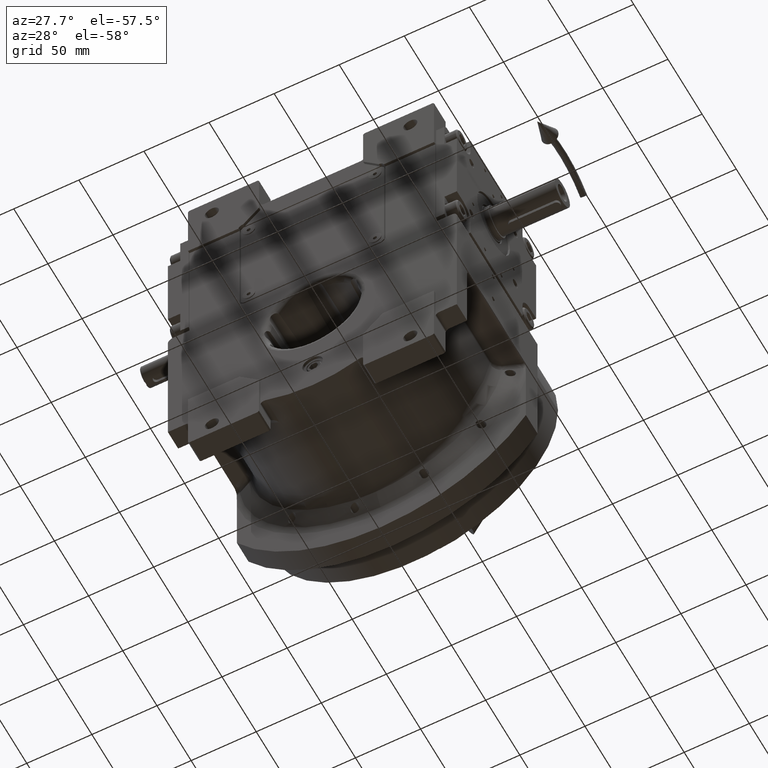
[diagram: clean part render]
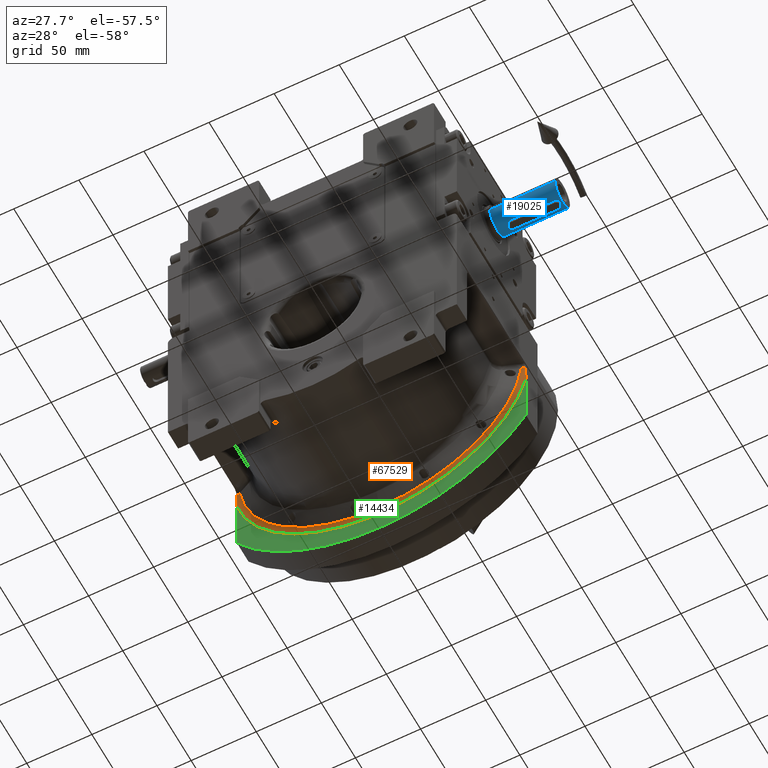
[diagram: same view with three faces highlighted in distinct colors, each labeled with its STEP entity id]
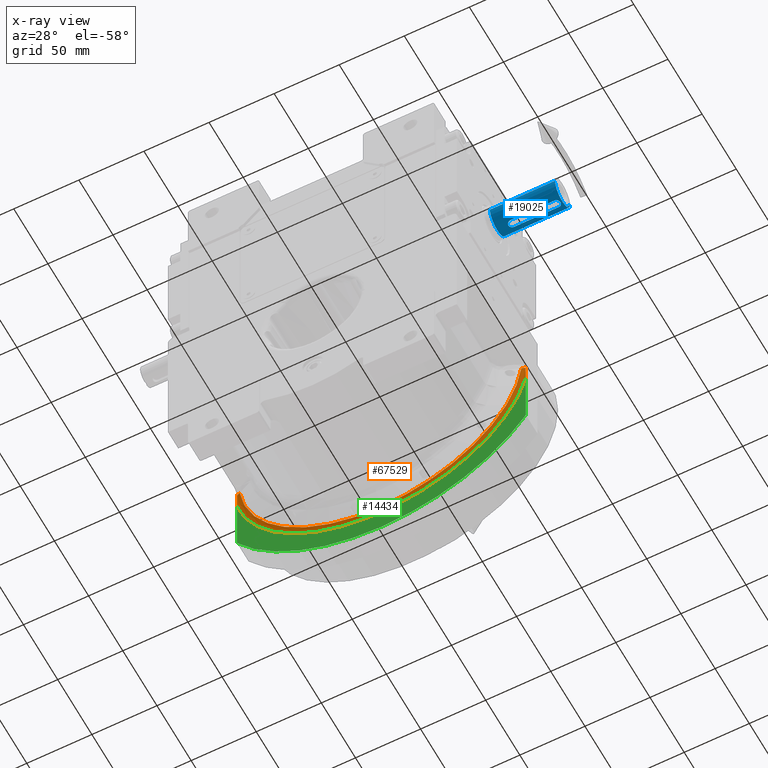
[diagram: x-ray of the same camera — body ghosted, the three highlighted faces saturated]
A machine part, auxiliary view with three faces highlighted in distinct colors.
The next image is the same camera in x-ray (body ghosted, the three faces saturated) — at least one of them is partly hidden behind the body in this view.
Their STEP definitions:

[orange] entity #67529 — the highlighted toroidal blend (fillet) surface has major radius 113.879 mm and minor (blend) radius 10 mm.
#303 = EDGE_CURVE ( 'NONE', #30098, #49240, #4674, .T. ) ;
#440 = CARTESIAN_POINT ( 'NONE',  ( 110.9999999999999432, 47.30109702303251140, -14.03657177442504000 ) ) ;
#2090 = CARTESIAN_POINT ( 'NONE',  ( 110.9999999999999574, 47.37721023959501565, -17.15660303781627150 ) ) ;
#2447 = CARTESIAN_POINT ( 'NONE',  ( 110.9999999999999858, 47.35262548411426309, -16.14045418600772308 ) ) ;
#2558 = CARTESIAN_POINT ( 'NONE',  ( -110.4234585868003222, 47.10985980794839634, -11.80427979343789069 ) ) ;
#3241 = VERTEX_POINT ( 'NONE', #25173 ) ;
#4571 = CARTESIAN_POINT ( 'NONE',  ( -111.0000000000000142, 47.39775283363938030, -18.01025571059393826 ) ) ;
#4674 = CIRCLE ( 'NONE', #16933, 113.8793756871230158 ) ;
#5038 = EDGE_CURVE ( 'NONE', #59093, #17817, #25008, .T. ) ;
#5745 = CARTESIAN_POINT ( 'NONE',  ( -101.7990064294248214, 46.16025384316066038, -69.96404336023731219 ) ) ;
#5830 = DIRECTION ( 'NONE',  ( -0.9747155648707268583, 0.000000000000000000, -0.2234492506112734644 ) ) ;
#7619 = VERTEX_POINT ( 'NONE', #34834 ) ;
#7685 = CARTESIAN_POINT ( 'NONE',  ( 111.0000000000000000, 47.50000000000000000, -25.44626115736659955 ) ) ;
#9381 = CARTESIAN_POINT ( 'NONE',  ( 109.9039732449431170, 46.93902478097685815, -11.84631214861205706 ) ) ;
#9837 = ORIENTED_EDGE ( 'NONE', *, *, #62021, .T. ) ;
#10299 = TOROIDAL_SURFACE ( 'NONE', #60669, 113.8793756871230016, 10.00000000000000000 ) ;
#11336 = CARTESIAN_POINT ( 'NONE',  ( -58.33770022237654018, 46.16024937670292871, -108.8793721944054340 ) ) ;
#12087 = DIRECTION ( 'NONE',  ( 0.000000000000000000, -1.000000000000000000, 0.000000000000000000 ) ) ;
#12503 = ORIENTED_EDGE ( 'NONE', *, *, #5038, .F. ) ;
#13836 = EDGE_CURVE ( 'NONE', #32945, #49240, #58997, .T. ) ;
#15975 = B_SPLINE_CURVE_WITH_KNOTS ( 'NONE', 3,
 ( #32188, #52885, #62717, #4571, #67966, #53572, #58518, #31848, #42000, #53227, #64108, #58165, #41303 ),
 .UNSPECIFIED., .F., .F.,
 ( 4, 1, 1, 2, 2, 1, 1, 1, 4 ),
 ( 0.000000000000000000, 0.4999999999999906741, 0.5624999999999891198, 0.5703124999999893419, 0.5781249999999896749, 0.5937499999999901190, 0.6249999999999905631, 0.7499999999999935607, 1.000000000000000000 ),
 .UNSPECIFIED. ) ;
#16502 = CARTESIAN_POINT ( 'NONE',  ( 110.9999999999999716, 47.37947912676571605, -17.25058397870262894 ) ) ;
#16864 = CARTESIAN_POINT ( 'NONE',  ( 110.9999999999999574, 47.26250817921272329, -12.53135113091263264 ) ) ;
#16933 = AXIS2_PLACEMENT_3D ( 'NONE', #54849, #12087, #5830 ) ;
#17588 = CARTESIAN_POINT ( 'NONE',  ( -6.107335892911600708E-14, 46.16024936020976099, -108.8793717567185979 ) ) ;
#17817 = VERTEX_POINT ( 'NONE', #20799 ) ;
#18280 = CARTESIAN_POINT ( 'NONE',  ( -108.2181486248951927, 46.16020982646139714, -11.98056577044130044 ) ) ;
#18347 = ORIENTED_EDGE ( 'NONE', *, *, #13836, .F. ) ;
#18351 = CARTESIAN_POINT ( 'NONE',  ( 108.2182055107325880, 46.16026080517839603, -11.98086067912928065 ) ) ;
#18698 = B_SPLINE_CURVE_WITH_KNOTS ( 'NONE', 3,
 ( #18280, #56801, #66985, #61062, #2558, #34389 ),
 .UNSPECIFIED., .F., .F.,
 ( 4, 2, 4 ),
 ( 0.000000000000000000, 0.5000000000000000000, 1.000000000000000000 ),
 .UNSPECIFIED. ) ;
#19000 = EDGE_LOOP ( 'NONE', ( #37216, #9837, #39917, #49553, #18347, #68661, #12503 ) ) ;
#19892 = CARTESIAN_POINT ( 'NONE',  ( -111.0000000000000000, 47.50000000000000000, -25.44626115736729588 ) ) ;
#20799 = CARTESIAN_POINT ( 'NONE',  ( 108.2182055107325880, 46.16026080517839603, -11.98086067912928065 ) ) ;
#20872 = CARTESIAN_POINT ( 'NONE',  ( 108.2182055107325880, 46.16026080517839603, -11.98086067912928065 ) ) ;
#23416 = CARTESIAN_POINT ( 'NONE',  ( 110.9999999999999147, 47.39592956473512686, -17.94582316151957713 ) ) ;
#24099 = CARTESIAN_POINT ( 'NONE',  ( 110.9999999999999858, 47.37382107352491545, -17.01630155678829581 ) ) ;
#25008 =( BOUNDED_CURVE ( )  B_SPLINE_CURVE ( 3, ( #65678, #45298, #66719, #18351 ),
 .UNSPECIFIED., .F., .F. ) 
 B_SPLINE_CURVE_WITH_KNOTS ( ( 4, 4 ),
 ( 0.07171175334500150267, 1.532246419677093741 ),
 .UNSPECIFIED. ) 
 CURVE ( )  GEOMETRIC_REPRESENTATION_ITEM ( )  RATIONAL_B_SPLINE_CURVE ( ( 1.000000000000000000, 0.8299973995656204639, 0.8299973995656204639, 1.000000000000000000 ) ) 
 REPRESENTATION_ITEM ( '' )  );
#25043 = EDGE_CURVE ( 'NONE', #32945, #17817, #47078, .T. ) ;
#25173 = CARTESIAN_POINT ( 'NONE',  ( -110.9999998426041969, 47.24161804384319652, -11.75654023702319861 ) ) ;
#26492 = CARTESIAN_POINT ( 'NONE',  ( 108.9783490142804538, 46.56487083118202719, -11.92075401756932429 ) ) ;
#30098 = VERTEX_POINT ( 'NONE', #19892 ) ;
#31848 = CARTESIAN_POINT ( 'NONE',  ( -111.0000000000000568, 47.38398366112607363, -17.43201616111707608 ) ) ;
#32188 = CARTESIAN_POINT ( 'NONE',  ( -111.0000000000000000, 47.50000000000000000, -25.44626115736729588 ) ) ;
#32945 = VERTEX_POINT ( 'NONE', #60575 ) ;
#34389 = CARTESIAN_POINT ( 'NONE',  ( -110.9999998426041969, 47.24161804384319652, -11.75654023702319861 ) ) ;
#34834 = CARTESIAN_POINT ( 'NONE',  ( -108.2181486248951927, 46.16020982646139714, -11.98056577044130044 ) ) ;
#35864 = DIRECTION ( 'NONE',  ( -0.9987228073795436645, 0.000000000000000000, -0.05052478619373559215 ) ) ;
#37216 = ORIENTED_EDGE ( 'NONE', *, *, #67682, .F. ) ;
#39629 = EDGE_CURVE ( 'NONE', #30098, #3241, #15975, .T. ) ;
#39917 = ORIENTED_EDGE ( 'NONE', *, *, #39629, .F. ) ;
#41102 = CARTESIAN_POINT ( 'NONE',  ( -9.237055564881299892E-14, 37.50000000000000000, -8.171241461241149613E-14 ) ) ;
#41303 = CARTESIAN_POINT ( 'NONE',  ( -110.9999998426041969, 47.24161804384319652, -11.75654023702319861 ) ) ;
#42000 = CARTESIAN_POINT ( 'NONE',  ( -111.0000000000000000, 47.37801887890174868, -17.18315811918595060 ) ) ;
#45298 = CARTESIAN_POINT ( 'NONE',  ( 58.33757220637139795, 46.16024934371661459, -108.8793713190323729 ) ) ;
#45452 = CARTESIAN_POINT ( 'NONE',  ( 110.9999999999999289, 47.46019542777067812, -20.85051949887152745 ) ) ;
#47078 = B_SPLINE_CURVE_WITH_KNOTS ( 'NONE', 3,
 ( #58065, #47869, #9381, #26492, #58429, #20872 ),
 .UNSPECIFIED., .F., .F.,
 ( 4, 2, 4 ),
 ( 0.000000000000000000, 0.5000000000000000000, 1.000000000000000000 ),
 .UNSPECIFIED. ) ;
#47148 = CARTESIAN_POINT ( 'NONE',  ( 111.0000000000000000, 47.50000000000000000, -25.44626115736659955 ) ) ;
#47869 = CARTESIAN_POINT ( 'NONE',  ( 110.4235987460407671, 47.10989188117843440, -11.80426955000224964 ) ) ;
#49240 = VERTEX_POINT ( 'NONE', #47148 ) ;
#49553 = ORIENTED_EDGE ( 'NONE', *, *, #303, .T. ) ;
#50766 = CARTESIAN_POINT ( 'NONE',  ( 110.9999998869266022, 47.24161831933449918, -11.75654022255562126 ) ) ;
#52885 = CARTESIAN_POINT ( 'NONE',  ( -110.9999999999999858, 47.49184152199143227, -23.26125549203704068 ) ) ;
#53227 = CARTESIAN_POINT ( 'NONE',  ( -110.9999999999999716, 47.35640947859300098, -16.28572579493090444 ) ) ;
#53572 = CARTESIAN_POINT ( 'NONE',  ( -111.0000000000000142, 47.38804427955523835, -17.60168279826294579 ) ) ;
#54849 = CARTESIAN_POINT ( 'NONE',  ( -9.947598300641398816E-14, 47.50000000000000000, -5.684341886080798963E-14 ) ) ;
#55675 = CARTESIAN_POINT ( 'NONE',  ( 111.0000000000000000, 47.38034144301978046, -17.28637658354777784 ) ) ;
#56801 = CARTESIAN_POINT ( 'NONE',  ( -108.5720257659131534, 46.36153724422366906, -11.95314572303506395 ) ) ;
#58065 = CARTESIAN_POINT ( 'NONE',  ( 110.9999998869266022, 47.24161831933449918, -11.75654022255562126 ) ) ;
#58165 = CARTESIAN_POINT ( 'NONE',  ( -111.0000000000000284, 47.26671036820440008, -12.69711666045169274 ) ) ;
#58429 = CARTESIAN_POINT ( 'NONE',  ( 108.5721546957471020, 46.36161021549431638, -11.95313475060374131 ) ) ;
#58518 = CARTESIAN_POINT ( 'NONE',  ( -111.0000000000000142, 47.38697793714037942, -17.55712914402924696 ) ) ;
#58997 = B_SPLINE_CURVE_WITH_KNOTS ( 'NONE', 3,
 ( #50766, #16864, #440, #2447, #24099, #2090, #16502, #55675, #66543, #23416, #45452, #66881, #7685 ),
 .UNSPECIFIED., .F., .F.,
 ( 4, 1, 1, 1, 2, 2, 1, 1, 4 ),
 ( 0.000000000000000000, 0.2499999999999993339, 0.3749999999999991673, 0.3906249999999991673, 0.3984374999999988898, 0.4062499999999986122, 0.4374999999999987788, 0.4999999999999991118, 1.000000000000000000 ),
 .UNSPECIFIED. ) ;
#59093 = VERTEX_POINT ( 'NONE', #68067 ) ;
#60575 = CARTESIAN_POINT ( 'NONE',  ( 110.9999998869266022, 47.24161831933449918, -11.75654022255562126 ) ) ;
#60669 = AXIS2_PLACEMENT_3D ( 'NONE', #41102, #62516, #35864 ) ;
#61000 =( BOUNDED_CURVE ( )  B_SPLINE_CURVE ( 3, ( #65617, #5745, #11336, #17588 ),
 .UNSPECIFIED., .F., .F. ) 
 B_SPLINE_CURVE_WITH_KNOTS ( ( 4, 4 ),
 ( 4.894359738531879778, 6.354897060524587360 ),
 .UNSPECIFIED. ) 
 CURVE ( )  GEOMETRIC_REPRESENTATION_ITEM ( )  RATIONAL_B_SPLINE_CURVE ( ( 1.000000000000000000, 0.8299968090623841555, 0.8299968090623841555, 1.000000000000000000 ) ) 
 REPRESENTATION_ITEM ( '' )  );
#61062 = CARTESIAN_POINT ( 'NONE',  ( -109.9037689433001930, 46.93895356715016476, -11.84632748395139146 ) ) ;
#62021 = EDGE_CURVE ( 'NONE', #7619, #3241, #18698, .T. ) ;
#62516 = DIRECTION ( 'NONE',  ( 0.000000000000000000, 1.000000000000000000, 0.000000000000000000 ) ) ;
#62717 = CARTESIAN_POINT ( 'NONE',  ( -110.9999999999999858, 47.45869610671962846, -20.70783326501533494 ) ) ;
#64108 = CARTESIAN_POINT ( 'NONE',  ( -111.0000000000000284, 47.30739276393136095, -14.28307552350015541 ) ) ;
#65617 = CARTESIAN_POINT ( 'NONE',  ( -108.2181486248951927, 46.16020982646139714, -11.98056577044130044 ) ) ;
#65678 = CARTESIAN_POINT ( 'NONE',  ( -6.107335892911600708E-14, 46.16024936020976099, -108.8793717567185979 ) ) ;
#66543 = CARTESIAN_POINT ( 'NONE',  ( 110.9999999999999574, 47.38500262563848509, -17.48094355212767326 ) ) ;
#66719 = CARTESIAN_POINT ( 'NONE',  ( 101.7988371762501458, 46.16025378558333614, -69.96418493751507128 ) ) ;
#66881 = CARTESIAN_POINT ( 'NONE',  ( 110.9999999999999574, 47.49300976463167956, -23.37757664004382363 ) ) ;
#66985 = CARTESIAN_POINT ( 'NONE',  ( -108.9781506155099464, 46.56477920288156724, -11.92076974956339086 ) ) ;
#67529 = ADVANCED_FACE ( 'NONE', ( #68485 ), #10299, .F. ) ;
#67682 = EDGE_CURVE ( 'NONE', #7619, #59093, #61000, .T. ) ;
#67966 = CARTESIAN_POINT ( 'NONE',  ( -111.0000000000000284, 47.38981798226070907, -17.67600262140464196 ) ) ;
#68067 = CARTESIAN_POINT ( 'NONE',  ( -6.107335892911600708E-14, 46.16024936020976099, -108.8793717567185979 ) ) ;
#68485 = FACE_OUTER_BOUND ( 'NONE', #19000, .T. ) ;
#68661 = ORIENTED_EDGE ( 'NONE', *, *, #25043, .T. ) ;

[blue] entity #19025 — the highlighted cylindrical surface (edge-blend (fillet) strip) has radius 11 mm, axis along (-1, -0, -0).
#408 = ORIENTED_EDGE ( 'NONE', *, *, #1692, .F. ) ;
#455 = CARTESIAN_POINT ( 'NONE',  ( 2.999999999999917843, -113.5000000000000000, 10.58300524425888334 ) ) ;
#690 = CARTESIAN_POINT ( 'NONE',  ( -3.000000000000082601, -113.5000000000000000, 10.58300524425888334 ) ) ;
#943 = CARTESIAN_POINT ( 'NONE',  ( -11.00000000000000000, -117.9999999999999858, 5.273559366969493567E-13 ) ) ;
#1567 = VERTEX_POINT ( 'NONE', #26701 ) ;
#1692 = EDGE_CURVE ( 'NONE', #18830, #17774, #7229, .T. ) ;
#2191 = CARTESIAN_POINT ( 'NONE',  ( -2.896620451319834366, -114.2867369626761729, 10.61255511890335690 ) ) ;
#2268 = CARTESIAN_POINT ( 'NONE',  ( 1.109632560325075401, -116.2872937962976181, 10.94387101518974426 ) ) ;
#2274 = CARTESIAN_POINT ( 'NONE',  ( 10.99999999999993427, -67.99999999999998579, 0.000000000000000000 ) ) ;
#2560 = ORIENTED_EDGE ( 'NONE', *, *, #9820, .F. ) ;
#2683 = CARTESIAN_POINT ( 'NONE',  ( 1.942138428050927956, -77.19951509893311936, 10.82877008393308849 ) ) ;
#2873 = CARTESIAN_POINT ( 'NONE',  ( -2.920736496382444258, -114.1920785685286575, 10.60630211981264281 ) ) ;
#2947 = CARTESIAN_POINT ( 'NONE',  ( 1.765016538473137775, -115.9284393430261275, 10.85718210774120074 ) ) ;
#3009 = CARTESIAN_POINT ( 'NONE',  ( -4.840916435492046288E-08, -116.5000000000000000, 11.00000000000054357 ) ) ;
#3011 = CARTESIAN_POINT ( 'NONE',  ( 2.722192524068726804, -78.23282212291367443, 10.65774368925958093 ) ) ;
#3362 = CARTESIAN_POINT ( 'NONE',  ( 1.179703428401750021, -76.74166051924402154, 10.93651200567690829 ) ) ;
#3634 = CARTESIAN_POINT ( 'NONE',  ( 2.999999999999910738, -113.9062021680413750, 10.58646632254328424 ) ) ;
#3906 = CARTESIAN_POINT ( 'NONE',  ( -1.761503380922796458, -115.9362690069877857, 10.85852761782654241 ) ) ;
#4398 = CARTESIAN_POINT ( 'NONE',  ( -3.000000000000082601, -79.50000000000000000, 10.58300524425888334 ) ) ;
#4527 = CIRCLE ( 'NONE', #6768, 11.00000000000000000 ) ;
#4605 = CARTESIAN_POINT ( 'NONE',  ( -1.208541879012663189, -116.2459060391745567, 10.93334476567150126 ) ) ;
#5089 = CARTESIAN_POINT ( 'NONE',  ( -2.308734339584207262, -77.56607553631236840, 10.75673227047042424 ) ) ;
#6768 = AXIS2_PLACEMENT_3D ( 'NONE', #12848, #33525, #12145 ) ;
#7229 = B_SPLINE_CURVE_WITH_KNOTS ( 'NONE', 3,
 ( #7427, #45218, #50183, #2873, #2191, #23519, #68000, #52580, #68365, #51540, #24887, #62402, #9842, #13699, #14368, #66974, #67669, #36446, #8801, #62755, #19964, #46254, #57850, #3906, #31200, #35750, #9503, #19283, #67319, #4605, #61733, #57155, #35071, #57508, #8464, #41342, #20316 ),
 .UNSPECIFIED., .F., .F.,
 ( 4, 2, 2, 1, 1, 1, 2, 2, 2, 2, 2, 2, 2, 2, 2, 2, 1, 1, 2, 2, 4 ),
 ( 0.000000000000000000, 0.06249999999990885069, 0.09374999999986544097, 0.1093749999998437361, 0.1171874999998329114, 0.1210937499998295808, 0.1230468749998299832, 0.1249999999998303857, 0.1874999999998473443, 0.2187499999998558375, 0.2343749999998600564, 0.2421874999998633593, 0.2499999999998667177, 0.3124999999998983036, 0.3437499999999129030, 0.3593749999999201750, 0.3671874999999238387, 0.3710937499999256706, 0.3730468749999276690, 0.3749999999999297229, 0.5000000000000000000 ),
 .UNSPECIFIED. ) ;
#7427 = CARTESIAN_POINT ( 'NONE',  ( -3.000000000000082601, -113.5000000000000000, 10.58300524425888334 ) ) ;
#7516 = LINE ( 'NONE', #2274, #17776 ) ;
#7866 = CARTESIAN_POINT ( 'NONE',  ( 0.7660654482596037651, -116.4022991523579549, 10.97354467628120922 ) ) ;
#7941 = CARTESIAN_POINT ( 'NONE',  ( 2.211193340447746181, -77.47227894400909065, 10.77562497333751423 ) ) ;
#8209 = CARTESIAN_POINT ( 'NONE',  ( 2.698907300592912062, -114.8105448978638492, 10.66393860694415707 ) ) ;
#8404 = VERTEX_POINT ( 'NONE', #43087 ) ;
#8464 = CARTESIAN_POINT ( 'NONE',  ( -0.7693699750027663820, -116.4290454329742630, 10.97984356645990545 ) ) ;
#8539 = CARTESIAN_POINT ( 'NONE',  ( 0.3790610715422109700, -116.4824670046869244, 10.99496089072069083 ) ) ;
#8605 = CARTESIAN_POINT ( 'NONE',  ( 1.286031796418888540, -76.78935861155120790, 10.92437284017435495 ) ) ;
#8801 = CARTESIAN_POINT ( 'NONE',  ( -2.232376625041765372, -115.5043590134487488, 10.77130177311135562 ) ) ;
#8960 = CARTESIAN_POINT ( 'NONE',  ( 2.779840291039510358, -78.37193820043569303, 10.64275982188527969 ) ) ;
#9470 = EDGE_CURVE ( 'NONE', #8404, #17647, #4527, .T. ) ;
#9475 = ORIENTED_EDGE ( 'NONE', *, *, #9470, .F. ) ;
#9503 = CARTESIAN_POINT ( 'NONE',  ( -1.322026388172354627, -116.1933228505703681, 10.91998920232885695 ) ) ;
#9648 = CARTESIAN_POINT ( 'NONE',  ( -1.279005615026164167, -76.78279251499962754, 10.92607964108014151 ) ) ;
#9820 = EDGE_CURVE ( 'NONE', #17774, #45100, #48172, .T. ) ;
#9842 = CARTESIAN_POINT ( 'NONE',  ( -2.722192511089895017, -114.7671779114493376, 10.65774369693641788 ) ) ;
#10345 = CARTESIAN_POINT ( 'NONE',  ( -2.759871036972648906, -78.32389248760772205, 10.64795842999695985 ) ) ;
#10688 = CARTESIAN_POINT ( 'NONE',  ( -1.127575440310275345, -76.71996127125699161, 10.94202595200815509 ) ) ;
#12145 = DIRECTION ( 'NONE',  ( 1.000000000000000000, 0.000000000000000000, -8.437694987151188129E-15 ) ) ;
#12605 = DIRECTION ( 'NONE',  ( 4.683861624749757595E-31, -1.000000000000000000, -9.367723249499515189E-31 ) ) ;
#12836 = CARTESIAN_POINT ( 'NONE',  ( 1.433641076574830864, -76.86340366032537474, 10.90581970597269468 ) ) ;
#12848 = CARTESIAN_POINT ( 'NONE',  ( -2.108315510120707088E-27, -117.9999999999999858, 5.273559366969493567E-13 ) ) ;
#13088 = CARTESIAN_POINT ( 'NONE',  ( 1.279005597976960784, -116.2172074953522838, 10.92607964090160699 ) ) ;
#13435 = CARTESIAN_POINT ( 'NONE',  ( 2.715324943672460911, -114.7760520230643806, 10.65964343166087325 ) ) ;
#13475 = ORIENTED_EDGE ( 'NONE', *, *, #38999, .T. ) ;
#13699 = CARTESIAN_POINT ( 'NONE',  ( -2.653232546180609219, -114.9137805338954621, 10.67643293072694632 ) ) ;
#13839 = CARTESIAN_POINT ( 'NONE',  ( 2.293772752492888589, -77.56545913327460084, 10.75861604569774777 ) ) ;
#14179 = VECTOR ( 'NONE', #12605, 1000.000000000000000 ) ;
#14368 = CARTESIAN_POINT ( 'NONE',  ( -2.498350178177048075, -115.1636859597702056, 10.71355040379599188 ) ) ;
#14522 = CARTESIAN_POINT ( 'NONE',  ( -0.6690474891746290842, -76.57389770467737833, 10.97984744493157905 ) ) ;
#14879 = CARTESIAN_POINT ( 'NONE',  ( -0.7660301964639789629, -76.59769131162434519, 10.97354823434116966 ) ) ;
#15208 = CARTESIAN_POINT ( 'NONE',  ( -2.698907276580607917, -78.18945505232753135, 10.66393861832711565 ) ) ;
#15433 = CARTESIAN_POINT ( 'NONE',  ( -3.000000000000082601, -79.50000000000000000, 10.58300524425888334 ) ) ;
#15613 = EDGE_LOOP ( 'NONE', ( #49850, #2560, #408, #33636, #20470 ) ) ;
#15625 = EDGE_CURVE ( 'NONE', #67948, #18830, #60627, .T. ) ;
#15909 = CARTESIAN_POINT ( 'NONE',  ( -2.764613558908796342, -78.33512742314238153, 10.64672004227435131 ) ) ;
#17647 = VERTEX_POINT ( 'NONE', #943 ) ;
#17774 = VERTEX_POINT ( 'NONE', #3009 ) ;
#17776 = VECTOR ( 'NONE', #23602, 1000.000000000000000 ) ;
#18348 = CARTESIAN_POINT ( 'NONE',  ( 1.067691574909802821, -116.3037818627402800, 10.94807355359308332 ) ) ;
#18414 = CARTESIAN_POINT ( 'NONE',  ( 2.999999999999917843, -79.50000000000000000, 10.58300524425835576 ) ) ;
#18672 = CARTESIAN_POINT ( 'NONE',  ( 2.916727034310275357, -114.2985054512028000, 10.60716798336014932 ) ) ;
#18830 = VERTEX_POINT ( 'NONE', #690 ) ;
#19025 = ADVANCED_FACE ( 'NONE', ( #39189, #22727 ), #39535, .T. ) ;
#19087 = CARTESIAN_POINT ( 'NONE',  ( 2.653232577745002541, -78.08621952457062321, 10.67643291959784868 ) ) ;
#19283 = CARTESIAN_POINT ( 'NONE',  ( -1.286031809961740491, -116.2106413819468287, 10.92437284010994780 ) ) ;
#19964 = CARTESIAN_POINT ( 'NONE',  ( -2.167336347002079222, -115.5745317129838554, 10.78446060510479398 ) ) ;
#19967 = AXIS2_PLACEMENT_3D ( 'NONE', #65160, #59574, #60953 ) ;
#20316 = CARTESIAN_POINT ( 'NONE',  ( -4.840916435492046288E-08, -116.5000000000000000, 11.00000000000054357 ) ) ;
#20466 = CARTESIAN_POINT ( 'NONE',  ( -3.000000000000089706, -79.09379826886218723, 10.58646627284832498 ) ) ;
#20465 = CARTESIAN_POINT ( 'NONE',  ( 3.620748295448003404E-29, -67.99999999999998579, 0.000000000000000000 ) ) ;
#20470 = ORIENTED_EDGE ( 'NONE', *, *, #26441, .F. ) ;
#20801 = CARTESIAN_POINT ( 'NONE',  ( -1.109627391464170332, -76.71270413328910820, 10.94387156038236952 ) ) ;
#20800 = DIRECTION ( 'NONE',  ( 1.000000000000000000, 0.000000000000000000, -8.437694987151189707E-15 ) ) ;
#21142 = CARTESIAN_POINT ( 'NONE',  ( -2.097778273838097007, -77.35513985681001259, 10.79818604398536053 ) ) ;
#22727 = FACE_OUTER_BOUND ( 'NONE', #65682, .T. ) ;
#23519 = CARTESIAN_POINT ( 'NONE',  ( -2.854075939418676544, -114.4255224491567304, 10.62355099528267743 ) ) ;
#23596 = CARTESIAN_POINT ( 'NONE',  ( 0.6690863468408568826, -116.4260934098166018, 10.97984356288105978 ) ) ;
#23602 = DIRECTION ( 'NONE',  ( 4.683861624749757595E-31, -1.000000000000000000, -9.367723249499515189E-31 ) ) ;
#24265 = CARTESIAN_POINT ( 'NONE',  ( 1.942007614415585781, -115.7873945428069931, 10.82708016586962607 ) ) ;
#24616 = CARTESIAN_POINT ( 'NONE',  ( 2.031554872715493953, -115.7076528737364072, 10.81075489181155191 ) ) ;
#24887 = CARTESIAN_POINT ( 'NONE',  ( -2.775339673020056352, -114.6390896219055406, 10.64392870139627867 ) ) ;
#25037 = CARTESIAN_POINT ( 'NONE',  ( -0.1869662585112066566, -76.49999999283612340, 11.00000258885300219 ) ) ;
#25377 = CARTESIAN_POINT ( 'NONE',  ( -2.601559308220473099, -78.00283810369263904, 10.68881842332068821 ) ) ;
#25735 = CARTESIAN_POINT ( 'NONE',  ( -2.031554922310100597, -77.29234717181736869, 10.81075488192654355 ) ) ;
#26087 = CARTESIAN_POINT ( 'NONE',  ( -1.429970842532967135, -76.85548033673212842, 10.90719156782524024 ) ) ;
#26441 = EDGE_CURVE ( 'NONE', #61967, #67948, #63664, .T. ) ;
#26701 = CARTESIAN_POINT ( 'NONE',  ( -11.00000000000006573, -67.99999999999998579, 5.273559366969493567E-13 ) ) ;
#28869 = CARTESIAN_POINT ( 'NONE',  ( 0.9111339967345983837, -116.3587381832188044, 10.96220668040148816 ) ) ;
#28935 = CARTESIAN_POINT ( 'NONE',  ( 1.234039021328146690, -76.76549614676042665, 10.93043900635687571 ) ) ;
#29224 = CARTESIAN_POINT ( 'NONE',  ( 2.601559358105697051, -114.9971618098907555, 10.68881840702283625 ) ) ;
#29560 = CARTESIAN_POINT ( 'NONE',  ( 2.748365601800574876, -114.7029062735035438, 10.65097209834164538 ) ) ;
#29627 = CARTESIAN_POINT ( 'NONE',  ( 2.999999999999910738, -79.29694141520381834, 10.58473540700586923 ) ) ;
#29890 = CARTESIAN_POINT ( 'NONE',  ( -4.840916435492046288E-08, -116.5000000000000000, 11.00000000000054357 ) ) ;
#29961 = CARTESIAN_POINT ( 'NONE',  ( 1.208541853669290678, -76.75409394963315890, 10.93334476671339850 ) ) ;
#30246 = CARTESIAN_POINT ( 'NONE',  ( 1.678559002724982374, -115.9883759540916230, 10.87070391493025490 ) ) ;
#30644 = VECTOR ( 'NONE', #39808, 1000.000000000000000 ) ;
#31200 = CARTESIAN_POINT ( 'NONE',  ( -1.512920531882281816, -116.0924210061373287, 10.89501526675180543 ) ) ;
#31356 = CARTESIAN_POINT ( 'NONE',  ( 0.7694190409318258927, -76.57097496801952730, 10.97983838684685765 ) ) ;
#31697 = CARTESIAN_POINT ( 'NONE',  ( -2.446669362798362890, -77.75293751087284022, 10.72593588417801058 ) ) ;
#33157 = CIRCLE ( 'NONE', #46571, 11.00000000000000000 ) ;
#33525 = DIRECTION ( 'NONE',  ( 4.683861624749757595E-31, -1.000000000000000000, -9.367723249499515189E-31 ) ) ;
#33636 = ORIENTED_EDGE ( 'NONE', *, *, #15625, .F. ) ;
#34126 = CARTESIAN_POINT ( 'NONE',  ( 0.1869928963672231603, -116.5000000000000142, 11.00000000000057199 ) ) ;
#34194 = CARTESIAN_POINT ( 'NONE',  ( 1.322026378660207113, -76.80667714470889962, 10.91998920209340085 ) ) ;
#34280 = ORIENTED_EDGE ( 'NONE', *, *, #44817, .F. ) ;
#34425 = CARTESIAN_POINT ( 'NONE',  ( -11.00000000000006573, -67.99999999999998579, 5.273559366969493567E-13 ) ) ;
#34460 = CARTESIAN_POINT ( 'NONE',  ( 2.737723598718580398, -114.7268635114971715, 10.65376798934632419 ) ) ;
#34526 = CARTESIAN_POINT ( 'NONE',  ( 2.831211728711944708, -78.50588394405968984, 10.62945304072544772 ) ) ;
#34805 = CARTESIAN_POINT ( 'NONE',  ( 2.764613546698416968, -114.6648726058257921, 10.64672004168922648 ) ) ;
#35071 = CARTESIAN_POINT ( 'NONE',  ( -1.159478978466624399, -116.2668804870942694, 10.93868413037353982 ) ) ;
#35210 = CARTESIAN_POINT ( 'NONE',  ( 2.232376612811737271, -77.49564097281744068, 10.77130177557136115 ) ) ;
#35478 = CARTESIAN_POINT ( 'NONE',  ( 1.147497349431800151, -116.2718709309673386, 10.93995103388393275 ) ) ;
#35549 = CARTESIAN_POINT ( 'NONE',  ( 2.438082008746779383, -77.74812880550851446, 10.72743682466661141 ) ) ;
#35750 = CARTESIAN_POINT ( 'NONE',  ( -1.433641077008294573, -116.1365963392273954, 10.90581970676172396 ) ) ;
#36254 = CARTESIAN_POINT ( 'NONE',  ( 0.3739328618711909580, -76.50000001432781005, 10.99999482229338454 ) ) ;
#36446 = CARTESIAN_POINT ( 'NONE',  ( -2.293772750023097551, -115.4345408691869181, 10.75861604645037595 ) ) ;
#36595 = CARTESIAN_POINT ( 'NONE',  ( -2.737723593628873076, -78.27313647700938759, 10.65376799547565057 ) ) ;
#36807 = VERTEX_POINT ( 'NONE', #55929 ) ;
#36938 = CARTESIAN_POINT ( 'NONE',  ( -1.897425700790519532, -77.17558050972412786, 10.83486050620179419 ) ) ;
#38999 = EDGE_CURVE ( 'NONE', #1567, #17647, #65995, .T. ) ;
#39189 = FACE_BOUND ( 'NONE', #15613, .T. ) ;
#39443 = CARTESIAN_POINT ( 'NONE',  ( 2.920736444934333598, -78.80792121401641737, 10.60630214428832652 ) ) ;
#39535 = CYLINDRICAL_SURFACE ( 'NONE', #19967, 11.00000000000000000 ) ;
#39711 = CARTESIAN_POINT ( 'NONE',  ( 2.759871028151251515, -114.6761075330201720, 10.64795842826989691 ) ) ;
#39781 = CARTESIAN_POINT ( 'NONE',  ( 2.801868822121414748, -78.42737245009010394, 10.63704590504073266 ) ) ;
#39808 = DIRECTION ( 'NONE',  ( 4.683861624749757595E-31, -1.000000000000000000, -9.367723249499515189E-31 ) ) ;
#40107 = CARTESIAN_POINT ( 'NONE',  ( 2.896620395667449444, -78.71326283637804977, 10.61255514141635814 ) ) ;
#40326 = CARTESIAN_POINT ( 'NONE',  ( 2.999999999999917843, -79.50000000000000000, 10.58300524425835576 ) ) ;
#40400 = EDGE_CURVE ( 'NONE', #36807, #1567, #33157, .T. ) ;
#40728 = CARTESIAN_POINT ( 'NONE',  ( 1.127578398133117554, -116.2800375271875311, 10.94202563825619912 ) ) ;
#40800 = CARTESIAN_POINT ( 'NONE',  ( 2.775339659217219701, -78.36091034448602954, 10.64392870297112736 ) ) ;
#40799 = DIRECTION ( 'NONE',  ( 4.683861624749757595E-31, -1.000000000000000000, -9.367723249499515189E-31 ) ) ;
#41137 = CARTESIAN_POINT ( 'NONE',  ( -2.767734110829767502, -78.34256138730094676, 10.64590626962410091 ) ) ;
#41342 = CARTESIAN_POINT ( 'NONE',  ( -0.3739857927347237654, -116.5000000000000142, 11.00000000000056488 ) ) ;
#42177 = CARTESIAN_POINT ( 'NONE',  ( 1.157452250761889845, -76.73226697775147898, 10.93890089386556852 ) ) ;
#42526 = CARTESIAN_POINT ( 'NONE',  ( -2.644564621108248748, -78.08127093686655940, 10.67795878946512644 ) ) ;
#43087 = CARTESIAN_POINT ( 'NONE',  ( 11.00000000000000000, -117.9999999999999858, 0.000000000000000000 ) ) ;
#44817 = EDGE_CURVE ( 'NONE', #36807, #8404, #7516, .T. ) ;
#45100 = VERTEX_POINT ( 'NONE', #455 ) ;
#45218 = CARTESIAN_POINT ( 'NONE',  ( -3.000000000000089706, -113.7030584421399340, 10.58473539081859904 ) ) ;
#45295 = CARTESIAN_POINT ( 'NONE',  ( 2.999999999999917843, -113.5000000000000000, 10.58300524425888334 ) ) ;
#45361 = CARTESIAN_POINT ( 'NONE',  ( 2.979326592047862210, -79.09712189806013782, 10.59077590235678734 ) ) ;
#45698 = CARTESIAN_POINT ( 'NONE',  ( 2.854075889747949901, -78.57447739851245672, 10.62355101183470119 ) ) ;
#45982 = CARTESIAN_POINT ( 'NONE',  ( 2.097778197096802799, -115.6448602184734540, 10.79818605929190944 ) ) ;
#46254 = CARTESIAN_POINT ( 'NONE',  ( -2.143602493980521384, -115.5990403563740898, 10.78918135663529476 ) ) ;
#46397 = CARTESIAN_POINT ( 'NONE',  ( -1.067681461186235081, -76.69621423876722588, 10.94807461226177026 ) ) ;
#46571 = AXIS2_PLACEMENT_3D ( 'NONE', #20465, #40799, #20800 ) ;
#47116 = CARTESIAN_POINT ( 'NONE',  ( -1.942007649469787767, -77.21260548667784462, 10.82708015886219322 ) ) ;
#47460 = CARTESIAN_POINT ( 'NONE',  ( -2.009136536754219104, -77.27193756388578549, 10.81489991634849801 ) ) ;
#48172 = B_SPLINE_CURVE_WITH_KNOTS ( 'NONE', 3,
 ( #29890, #34126, #8539, #23596, #7866, #28869, #55505, #18348, #2268, #40728, #60792, #35478, #13088, #56873, #30246, #2947, #55854, #24265, #62140, #24616, #51620, #45982, #67395, #56206, #29224, #61805, #8209, #13435, #34460, #29560, #39711, #34805, #61125, #67049, #18672, #3634, #45295 ),
 .UNSPECIFIED., .F., .F.,
 ( 4, 2, 2, 1, 1, 1, 2, 2, 2, 2, 2, 2, 2, 2, 2, 2, 1, 1, 2, 2, 4 ),
 ( 0.5000000000000000000, 0.5624999999999261702, 0.5937499999998896438, 0.6093749999998719913, 0.6171874999998624434, 0.6210937499998576694, 0.6230468749998561151, 0.6249999999998545608, 0.6874999999998646638, 0.7187499999998696598, 0.7343749999998722133, 0.7421874999998734346, 0.7499999999998747668, 0.8124999999998852029, 0.8437499999998885336, 0.8593749999998924194, 0.8671874999998916422, 0.8710937499998941957, 0.8730468749998985256, 0.8749999999999027445, 1.000000000000000000 ),
 .UNSPECIFIED. ) ;
#49122 = EDGE_CURVE ( 'NONE', #61967, #45100, #50365, .T. ) ;
#49545 = DIRECTION ( 'NONE',  ( 4.683861624749757595E-31, -1.000000000000000000, -9.367723249499515189E-31 ) ) ;
#49850 = ORIENTED_EDGE ( 'NONE', *, *, #49122, .T. ) ;
#50183 = CARTESIAN_POINT ( 'NONE',  ( -2.979326620798057768, -113.9028778870461593, 10.59077587802701359 ) ) ;
#50333 = CARTESIAN_POINT ( 'NONE',  ( 1.167542114975275158, -76.73651225059062142, 10.93782164777859656 ) ) ;
#50365 = LINE ( 'NONE', #60191, #30644 ) ;
#50671 = CARTESIAN_POINT ( 'NONE',  ( 2.167336317328022233, -77.42546825588505044, 10.78446061115303145 ) ) ;
#51346 = CARTESIAN_POINT ( 'NONE',  ( 2.772312148145354982, -78.35357030373856446, 10.64471541581967173 ) ) ;
#51540 = CARTESIAN_POINT ( 'NONE',  ( -2.779840307740184979, -114.6280617584312154, 10.64275981934228099 ) ) ;
#51620 = CARTESIAN_POINT ( 'NONE',  ( 2.076400096479012802, -115.6655274302378587, 10.80229491738731795 ) ) ;
#52036 = CARTESIAN_POINT ( 'NONE',  ( -1.765016550553752284, -77.07156066506716741, 10.85718210521195282 ) ) ;
#52376 = CARTESIAN_POINT ( 'NONE',  ( -1.678559007684457871, -77.01162404916421167, 10.87070391387389989 ) ) ;
#52580 = CARTESIAN_POINT ( 'NONE',  ( -2.801868851850209285, -114.5726274728256726, 10.63704589790054555 ) ) ;
#53073 = CARTESIAN_POINT ( 'NONE',  ( -2.748365602923866557, -78.29709372879079865, 10.65097210258031346 ) ) ;
#54285 = VECTOR ( 'NONE', #49545, 1000.000000000000000 ) ;
#55505 = CARTESIAN_POINT ( 'NONE',  ( 0.9835667666182050795, -116.3349916050398178, 10.95606526596663777 ) ) ;
#55577 = CARTESIAN_POINT ( 'NONE',  ( 2.143602447687557255, -77.40095959642091827, 10.78918136595093102 ) ) ;
#55854 = CARTESIAN_POINT ( 'NONE',  ( 1.897425672200152347, -115.8244195134346342, 10.83486051196197408 ) ) ;
#55929 = CARTESIAN_POINT ( 'NONE',  ( 10.99999999999993427, -67.99999999999998579, 0.000000000000000000 ) ) ;
#56206 = CARTESIAN_POINT ( 'NONE',  ( 2.446669414197469639, -115.2470624180614038, 10.72593587093011891 ) ) ;
#56280 = CARTESIAN_POINT ( 'NONE',  ( 2.786545491918452466, -78.38850868690020945, 10.64101912818406070 ) ) ;
#56873 = CARTESIAN_POINT ( 'NONE',  ( 1.429970843166093575, -116.1445196625885643, 10.90719156650611232 ) ) ;
#56946 = CARTESIAN_POINT ( 'NONE',  ( 1.761503377968221429, -77.06373099116255787, 10.85852761879097983 ) ) ;
#57155 = CARTESIAN_POINT ( 'NONE',  ( -1.167542148442821448, -116.2634877352683560, 10.93782164602124141 ) ) ;
#57309 = CARTESIAN_POINT ( 'NONE',  ( 1.159478943271768259, -76.73311949815575872, 10.93868413228516978 ) ) ;
#57508 = CARTESIAN_POINT ( 'NONE',  ( -1.157453054966575579, -116.2677326878750677, 10.93890081083045018 ) ) ;
#57654 = CARTESIAN_POINT ( 'NONE',  ( -0.9111087367172275853, -76.64125370730340592, 10.96220926695045605 ) ) ;
#57850 = CARTESIAN_POINT ( 'NONE',  ( -1.942138448682051433, -115.8004848877714323, 10.82877008001571539 ) ) ;
#58354 = CARTESIAN_POINT ( 'NONE',  ( -2.076400153897492107, -77.33447262473092110, 10.80229490591453079 ) ) ;
#59574 = DIRECTION ( 'NONE',  ( -4.683861624749757595E-31, 1.000000000000000000, 9.367723249499515189E-31 ) ) ;
#60191 = CARTESIAN_POINT ( 'NONE',  ( 2.999999999999917843, -79.50000000000000000, 10.58300524425835576 ) ) ;
#60276 = CARTESIAN_POINT ( 'NONE',  ( -3.000000000000082601, -79.50000000000000000, 10.58300524425888334 ) ) ;
#60459 = ORIENTED_EDGE ( 'NONE', *, *, #40400, .T. ) ;
#60627 = LINE ( 'NONE', #60276, #14179 ) ;
#60792 = CARTESIAN_POINT ( 'NONE',  ( 1.139535554658587913, -116.2751577281618438, 10.94078554495685651 ) ) ;
#60858 = CARTESIAN_POINT ( 'NONE',  ( 1.512920533460952566, -76.90757899485140570, 10.89501526605510229 ) ) ;
#60953 = DIRECTION ( 'NONE',  ( 1.000000000000000000, 0.000000000000000000, -8.437694987151189707E-15 ) ) ;
#61125 = CARTESIAN_POINT ( 'NONE',  ( 2.767734096340809469, -114.6574386473348426, 10.64590626981483368 ) ) ;
#61196 = CARTESIAN_POINT ( 'NONE',  ( 2.331831195179028260, -77.61164425542864365, 10.75053737701512446 ) ) ;
#61733 = CARTESIAN_POINT ( 'NONE',  ( -1.179703459327985593, -116.2583394675194342, 10.93651200414553948 ) ) ;
#61805 = CARTESIAN_POINT ( 'NONE',  ( 2.644564663183347264, -114.9187289833812144, 10.67795877401475657 ) ) ;
#61877 = CARTESIAN_POINT ( 'NONE',  ( 2.498350210409106875, -77.83631408846902389, 10.71355039470006965 ) ) ;
#61967 = VERTEX_POINT ( 'NONE', #40326 ) ;
#62140 = CARTESIAN_POINT ( 'NONE',  ( 2.009136490928566943, -115.7280624773660804, 10.81489992548218737 ) ) ;
#62402 = CARTESIAN_POINT ( 'NONE',  ( -2.772312159647778884, -114.6464296684535071, 10.64471541497841756 ) ) ;
#62550 = CARTESIAN_POINT ( 'NONE',  ( -0.3790214207103463906, -76.51752795411341879, 10.99496477369259750 ) ) ;
#62755 = CARTESIAN_POINT ( 'NONE',  ( -2.211193358110675078, -115.5277210365973701, 10.77562496973150985 ) ) ;
#63255 = CARTESIAN_POINT ( 'NONE',  ( -1.139534090975068858, -76.72484166894793134, 10.94078570188625754 ) ) ;
#63596 = CARTESIAN_POINT ( 'NONE',  ( -2.768513115839242200, -78.34441767696033310, 10.64570307403959504 ) ) ;
#63664 = B_SPLINE_CURVE_WITH_KNOTS ( 'NONE', 3,
 ( #18414, #29627, #45361, #39443, #40107, #45698, #34526, #39781, #56280, #8960, #40800, #51346, #3011, #19087, #61877, #35549, #61196, #13839, #35210, #7941, #50671, #55577, #2683, #56946, #60858, #12836, #34194, #8605, #28935, #29961, #3362, #50333, #57309, #42177, #31356, #36254, #25037, #62550, #14522, #14879, #57654, #63948, #46397, #20801, #10688, #63255, #68526, #9648, #26087, #52376, #52036, #36938, #47116, #47460, #25735, #58354, #21142, #5089, #31697, #25377, #42526, #15208, #68155, #36595, #53073, #10345, #15909, #41137, #63596, #67807, #20466, #4398 ),
 .UNSPECIFIED., .F., .F.,
 ( 4, 2, 2, 1, 1, 1, 2, 2, 2, 2, 2, 2, 2, 2, 2, 2, 1, 1, 2, 2, 2, 2, 2, 1, 1, 1, 2, 2, 2, 2, 2, 2, 2, 2, 2, 2, 1, 1, 2, 2, 4 ),
 ( 0.000000000000000000, 0.06250000000004603262, 0.09375000000006906975, 0.1093750000000805328, 0.1171875000000841688, 0.1210937500000859729, 0.1230468750000868611, 0.1250000000000877631, 0.1875000000000936751, 0.2187500000000984768, 0.2343750000001023071, 0.2421875000001042777, 0.2500000000001061928, 0.3125000000001216804, 0.3437500000001282308, 0.3593750000001315059, 0.3671875000001320610, 0.3710937500001322831, 0.3730468750001323941, 0.3750000000001324496, 0.5000000000001140199, 0.5625000000001048051, 0.5937500000000998090, 0.6093750000000973666, 0.6171875000000967004, 0.6210937500000972555, 0.6230468750000974776, 0.6250000000000976996, 0.6875000000000704992, 0.7187500000000568434, 0.7343750000000500711, 0.7421875000000479616, 0.7500000000000457412, 0.8125000000000192069, 0.8437500000000058842, 0.8593749999999970024, 0.8671874999999952260, 0.8710937499999972244, 0.8730468749999982236, 0.8749999999999992228, 1.000000000000000000 ),
 .UNSPECIFIED. ) ;
#63948 = CARTESIAN_POINT ( 'NONE',  ( -0.9835476433820119491, -76.66500159928872904, 10.95606724537882215 ) ) ;
#65160 = CARTESIAN_POINT ( 'NONE',  ( 3.620748295448003404E-29, -67.99999999999998579, 0.000000000000000000 ) ) ;
#65682 = EDGE_LOOP ( 'NONE', ( #13475, #9475, #34280, #60459 ) ) ;
#65995 = LINE ( 'NONE', #34425, #54285 ) ;
#66974 = CARTESIAN_POINT ( 'NONE',  ( -2.438081981028036083, -115.2518712317274634, 10.72743683188287989 ) ) ;
#67049 = CARTESIAN_POINT ( 'NONE',  ( 2.768513101405038146, -114.6555823575875905, 10.64570307426184570 ) ) ;
#67319 = CARTESIAN_POINT ( 'NONE',  ( -1.234039042478094039, -116.2345038436760092, 10.93043900566964233 ) ) ;
#67395 = CARTESIAN_POINT ( 'NONE',  ( 2.308734362823998243, -115.4339244520514711, 10.75673226671235128 ) ) ;
#67669 = CARTESIAN_POINT ( 'NONE',  ( -2.331831185041231436, -115.3883557567792622, 10.75053737960902644 ) ) ;
#67807 = CARTESIAN_POINT ( 'NONE',  ( -2.916727202267201946, -78.70149496793983701, 10.60716793333590680 ) ) ;
#67948 = VERTEX_POINT ( 'NONE', #15433 ) ;
#68000 = CARTESIAN_POINT ( 'NONE',  ( -2.831211772329599530, -114.4941159338586090, 10.62945302790815560 ) ) ;
#68155 = CARTESIAN_POINT ( 'NONE',  ( -2.715324926754116852, -78.22394794041348121, 10.65964344122199847 ) ) ;
#68365 = CARTESIAN_POINT ( 'NONE',  ( -2.786545512822448334, -114.6114912608402392, 10.64101912421241458 ) ) ;
#68526 = CARTESIAN_POINT ( 'NONE',  ( -1.147497411269821965, -76.72812909463448250, 10.93995103007683412 ) ) ;

[green] entity #14434 — the highlighted planar face has unit normal (0, -1, 0).
#303 = EDGE_CURVE ( 'NONE', #30098, #49240, #4674, .T. ) ;
#2383 = VERTEX_POINT ( 'NONE', #12784 ) ;
#2831 = ORIENTED_EDGE ( 'NONE', *, *, #50731, .F. ) ;
#3031 = DIRECTION ( 'NONE',  ( 0.000000000000000000, -1.000000000000000000, 0.000000000000000000 ) ) ;
#4606 = ORIENTED_EDGE ( 'NONE', *, *, #303, .F. ) ;
#4674 = CIRCLE ( 'NONE', #16933, 113.8793756871230158 ) ;
#5830 = DIRECTION ( 'NONE',  ( -0.9747155648707268583, 0.000000000000000000, -0.2234492506112734644 ) ) ;
#12087 = DIRECTION ( 'NONE',  ( 0.000000000000000000, -1.000000000000000000, 0.000000000000000000 ) ) ;
#12784 = CARTESIAN_POINT ( 'NONE',  ( -111.0000000000000000, 47.50000000000000000, -71.43528539874399996 ) ) ;
#14434 = ADVANCED_FACE ( 'NONE', ( #24358 ), #68177, .T. ) ;
#15144 = EDGE_LOOP ( 'NONE', ( #2831, #32070, #50007, #4606 ) ) ;
#16331 = AXIS2_PLACEMENT_3D ( 'NONE', #51019, #3031, #19777 ) ;
#16933 = AXIS2_PLACEMENT_3D ( 'NONE', #54849, #12087, #5830 ) ;
#19569 = CIRCLE ( 'NONE', #64386, 131.9999999999999716 ) ;
#19777 = DIRECTION ( 'NONE',  ( 0.000000000000000000, 0.000000000000000000, 1.000000000000000000 ) ) ;
#19892 = CARTESIAN_POINT ( 'NONE',  ( -111.0000000000000000, 47.50000000000000000, -25.44626115736729588 ) ) ;
#24358 = FACE_OUTER_BOUND ( 'NONE', #15144, .T. ) ;
#28235 = CARTESIAN_POINT ( 'NONE',  ( 0.000000000000000000, 47.50000000000000000, 4.263256414560599853E-14 ) ) ;
#30098 = VERTEX_POINT ( 'NONE', #19892 ) ;
#31574 = LINE ( 'NONE', #69069, #56509 ) ;
#32070 = ORIENTED_EDGE ( 'NONE', *, *, #37335, .F. ) ;
#36874 = LINE ( 'NONE', #62487, #60736 ) ;
#37335 = EDGE_CURVE ( 'NONE', #50950, #2383, #19569, .T. ) ;
#39826 = CARTESIAN_POINT ( 'NONE',  ( 111.0000000000000000, 47.50000000000000000, -71.43528539874399996 ) ) ;
#47048 = DIRECTION ( 'NONE',  ( 6.180107079730629528E-16, 0.000000000000000000, 1.000000000000000000 ) ) ;
#47148 = CARTESIAN_POINT ( 'NONE',  ( 111.0000000000000000, 47.50000000000000000, -25.44626115736659955 ) ) ;
#47841 = EDGE_CURVE ( 'NONE', #50950, #49240, #36874, .T. ) ;
#49240 = VERTEX_POINT ( 'NONE', #47148 ) ;
#50007 = ORIENTED_EDGE ( 'NONE', *, *, #47841, .T. ) ;
#50304 = DIRECTION ( 'NONE',  ( 0.000000000000000000, 1.000000000000000000, 0.000000000000000000 ) ) ;
#50731 = EDGE_CURVE ( 'NONE', #2383, #30098, #31574, .T. ) ;
#50950 = VERTEX_POINT ( 'NONE', #39826 ) ;
#51019 = CARTESIAN_POINT ( 'NONE',  ( 0.000000000000000000, 47.50000000000000000, 0.000000000000000000 ) ) ;
#52945 = DIRECTION ( 'NONE',  ( 0.000000000000000000, 0.000000000000000000, 1.000000000000000000 ) ) ;
#54849 = CARTESIAN_POINT ( 'NONE',  ( -9.947598300641398816E-14, 47.50000000000000000, -5.684341886080798963E-14 ) ) ;
#56509 = VECTOR ( 'NONE', #52945, 1000.000000000000000 ) ;
#59792 = DIRECTION ( 'NONE',  ( 0.8409090909090902732, 0.000000000000000000, -0.5411764045359401809 ) ) ;
#60736 = VECTOR ( 'NONE', #47048, 1000.000000000000000 ) ;
#62487 = CARTESIAN_POINT ( 'NONE',  ( 111.0000000000000000, 47.50000000000000000, -71.43528539874399996 ) ) ;
#64386 = AXIS2_PLACEMENT_3D ( 'NONE', #28235, #50304, #59792 ) ;
#68177 = PLANE ( 'NONE',  #16331 ) ;
#69069 = CARTESIAN_POINT ( 'NONE',  ( -111.0000000000000000, 47.50000000000000000, -71.43528539874399996 ) ) ;